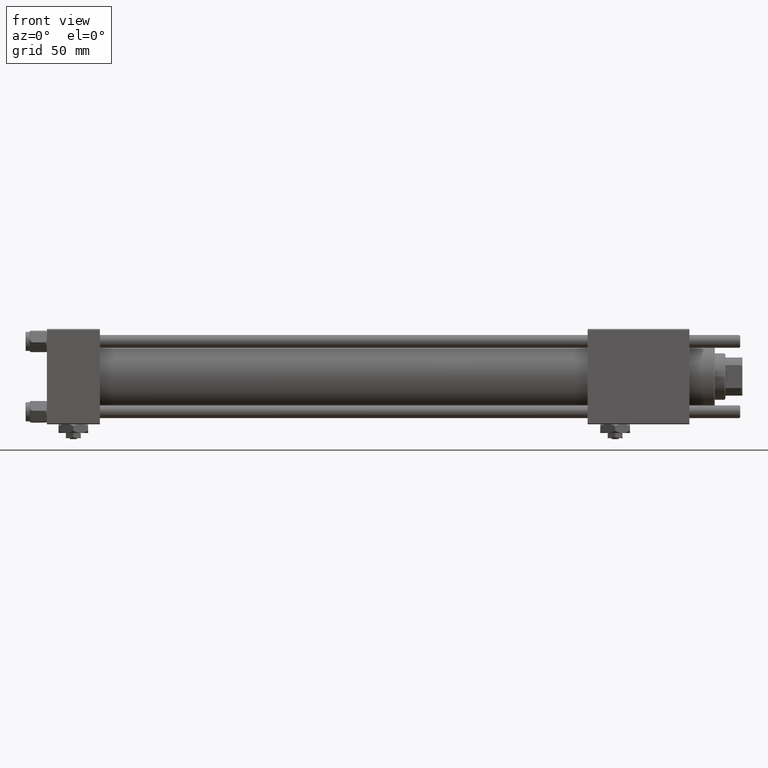
[diagram: clean part render]
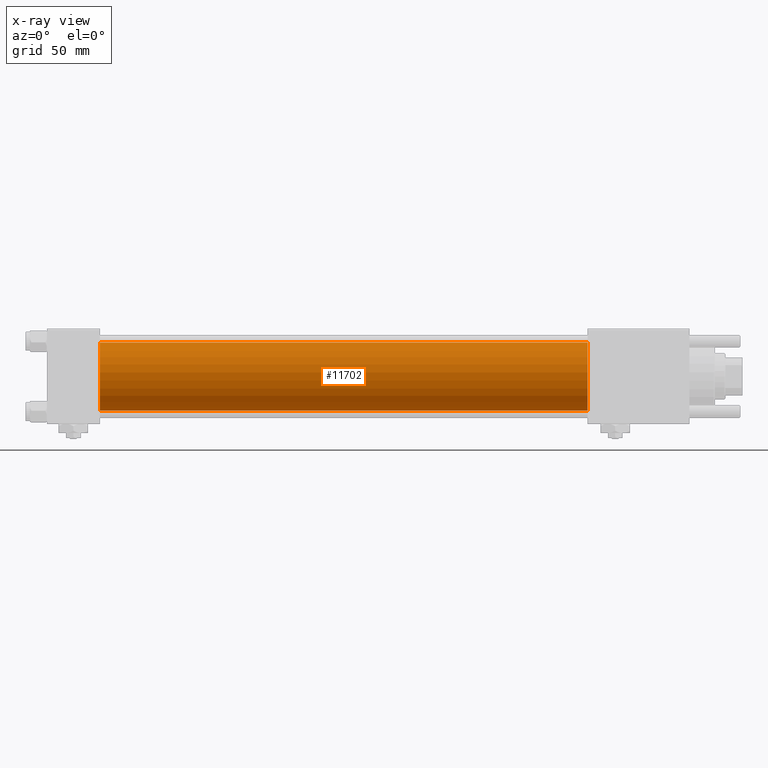
[diagram: x-ray — body ghosted, one internal face saturated and labeled with its STEP entity id]
A machine part, front view, then the same camera in x-ray: the body is ghosted and one INTERNAL B-rep face — a face not visible from any outside direction — is saturated and labeled: STEP entity #11702.
In plain terms, the highlighted cylindrical surface (edge-blend (fillet) strip) has radius 16 mm, axis along (-1, -0, -0).
Its self-contained STEP definition (entity closure, byte-faithful):
#57 = AXIS2_PLACEMENT_3D ( 'NONE', #14447, #19589, #1357 ) ;
#1357 = DIRECTION ( 'NONE',  ( 0.000000000000000000, 0.000000000000000000, -1.000000000000000000 ) ) ;
#1724 = CARTESIAN_POINT ( 'NONE',  ( 25.00000000000000000, -6.426503353294456087E-16, -16.00000000000000000 ) ) ;
#2908 = CYLINDRICAL_SURFACE ( 'NONE', #22496, 16.00000000000000000 ) ;
#4248 = LINE ( 'NONE', #4861, #6927 ) ;
#4554 = DIRECTION ( 'NONE',  ( -1.000000000000000000, -0.000000000000000000, -0.000000000000000000 ) ) ;
#4861 = CARTESIAN_POINT ( 'NONE',  ( 255.0000000000000000, -2.602085213965210642E-15, 16.00000000000000000 ) ) ;
#6927 = VECTOR ( 'NONE', #4554, 1000.000000000000000 ) ;
#8157 = CARTESIAN_POINT ( 'NONE',  ( 255.0000000000000000, -6.426503353294456087E-16, -16.00000000000000000 ) ) ;
#8469 = EDGE_CURVE ( 'NONE', #38217, #57206, #4248, .T. ) ;
#9568 = ORIENTED_EDGE ( 'NONE', *, *, #38040, .T. ) ;
#11702 = ADVANCED_FACE ( 'NONE', ( #30249 ), #2908, .F. ) ;
#11801 = LINE ( 'NONE', #57597, #21537 ) ;
#12341 = VERTEX_POINT ( 'NONE', #1724 ) ;
#14447 = CARTESIAN_POINT ( 'NONE',  ( 25.00000000000000000, -2.602085213965210642E-15, 0.000000000000000000 ) ) ;
#14493 = EDGE_CURVE ( 'NONE', #27559, #12341, #11801, .T. ) ;
#17038 = EDGE_LOOP ( 'NONE', ( #9568, #21229, #56268, #28579 ) ) ;
#18274 = CARTESIAN_POINT ( 'NONE',  ( 25.00000000000000000, -2.602085213965210642E-15, 16.00000000000000000 ) ) ;
#19589 = DIRECTION ( 'NONE',  ( 1.000000000000000000, 0.000000000000000000, 0.000000000000000000 ) ) ;
#21229 = ORIENTED_EDGE ( 'NONE', *, *, #14493, .T. ) ;
#21434 = DIRECTION ( 'NONE',  ( -1.000000000000000000, -0.000000000000000000, -0.000000000000000000 ) ) ;
#21537 = VECTOR ( 'NONE', #48199, 1000.000000000000000 ) ;
#22496 = AXIS2_PLACEMENT_3D ( 'NONE', #30540, #21434, #58126 ) ;
#22974 = DIRECTION ( 'NONE',  ( 0.000000000000000000, 0.000000000000000000, -1.000000000000000000 ) ) ;
#27155 = CARTESIAN_POINT ( 'NONE',  ( 255.0000000000000000, -2.602085213965210642E-15, 16.00000000000000000 ) ) ;
#27559 = VERTEX_POINT ( 'NONE', #8157 ) ;
#28579 = ORIENTED_EDGE ( 'NONE', *, *, #8469, .F. ) ;
#30249 = FACE_OUTER_BOUND ( 'NONE', #17038, .T. ) ;
#30540 = CARTESIAN_POINT ( 'NONE',  ( 255.0000000000000000, -2.602085213965210642E-15, 0.000000000000000000 ) ) ;
#33265 = CARTESIAN_POINT ( 'NONE',  ( 255.0000000000000000, -2.602085213965210642E-15, 0.000000000000000000 ) ) ;
#38040 = EDGE_CURVE ( 'NONE', #38217, #27559, #54119, .T. ) ;
#38217 = VERTEX_POINT ( 'NONE', #27155 ) ;
#38703 = CIRCLE ( 'NONE', #57, 16.00000000000000000 ) ;
#48199 = DIRECTION ( 'NONE',  ( -1.000000000000000000, -0.000000000000000000, -0.000000000000000000 ) ) ;
#53167 = AXIS2_PLACEMENT_3D ( 'NONE', #33265, #55420, #22974 ) ;
#54119 = CIRCLE ( 'NONE', #53167, 16.00000000000000000 ) ;
#55420 = DIRECTION ( 'NONE',  ( 1.000000000000000000, 0.000000000000000000, 0.000000000000000000 ) ) ;
#56268 = ORIENTED_EDGE ( 'NONE', *, *, #58719, .F. ) ;
#57206 = VERTEX_POINT ( 'NONE', #18274 ) ;
#57597 = CARTESIAN_POINT ( 'NONE',  ( 255.0000000000000000, -6.426503353294456087E-16, -16.00000000000000000 ) ) ;
#58126 = DIRECTION ( 'NONE',  ( 0.000000000000000000, 0.000000000000000000, 1.000000000000000000 ) ) ;
#58719 = EDGE_CURVE ( 'NONE', #57206, #12341, #38703, .T. ) ;